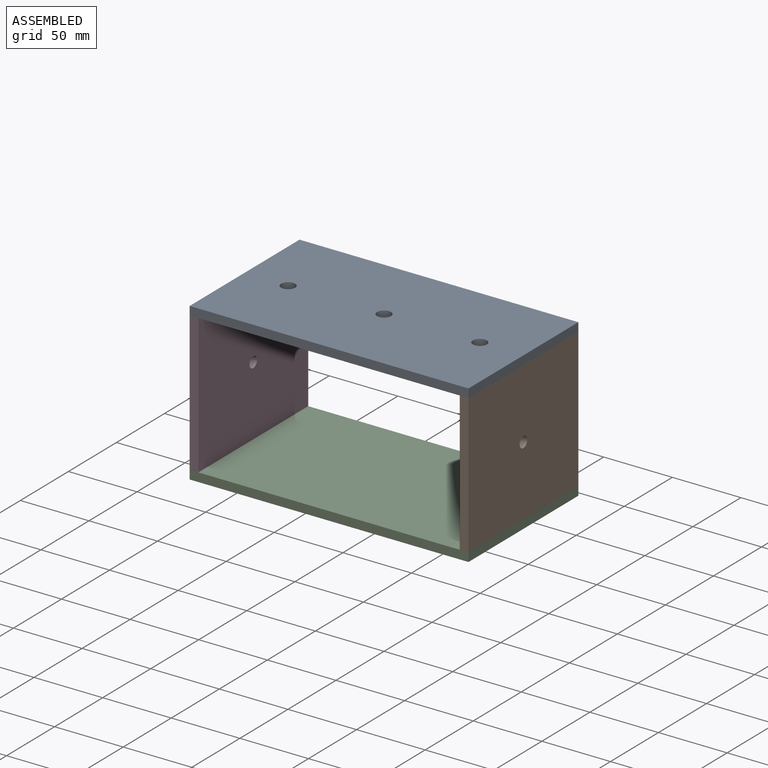
[diagram: assembled view]
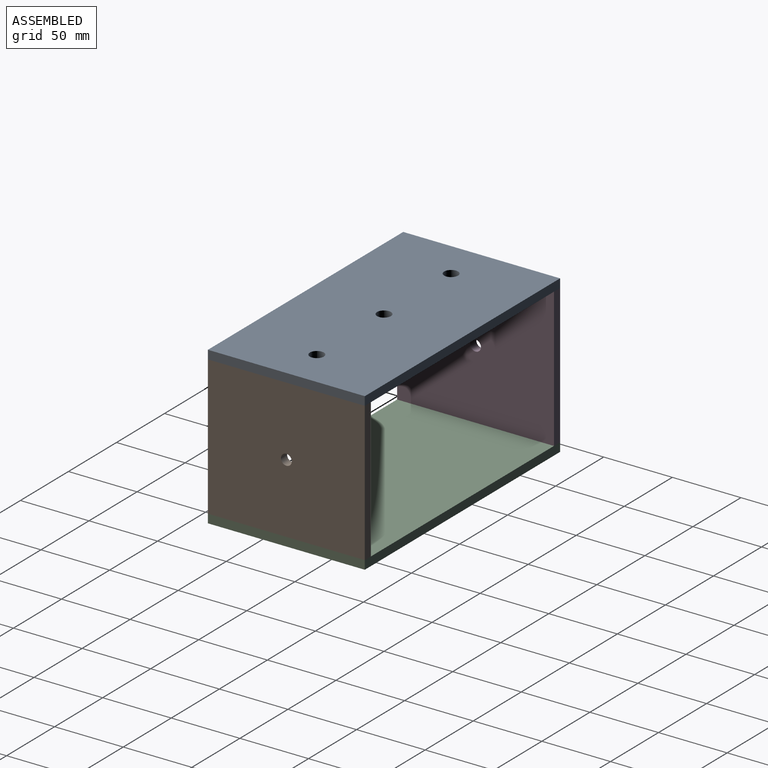
[diagram: assembled view, second angle]
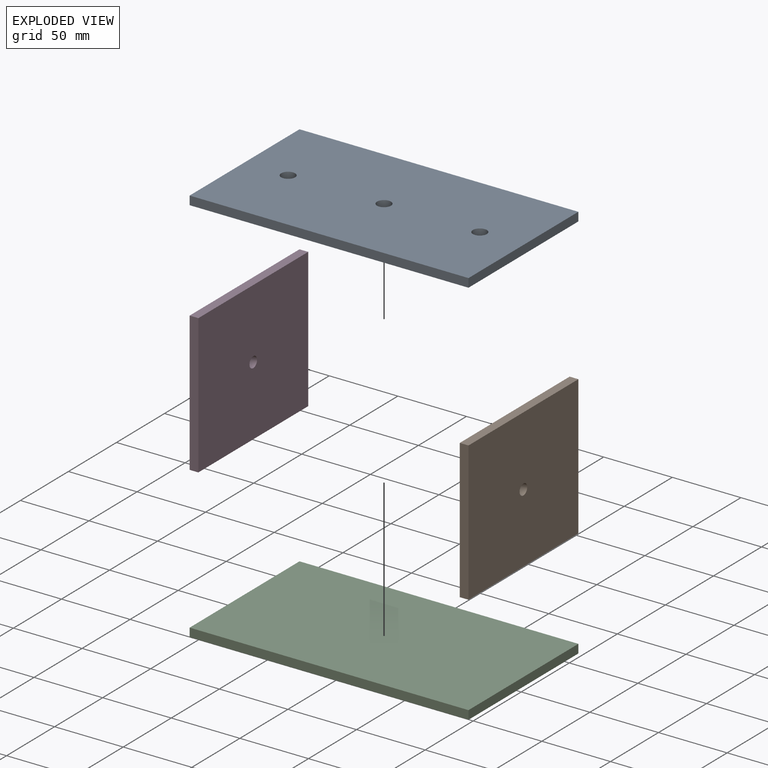
[diagram: exploded view]
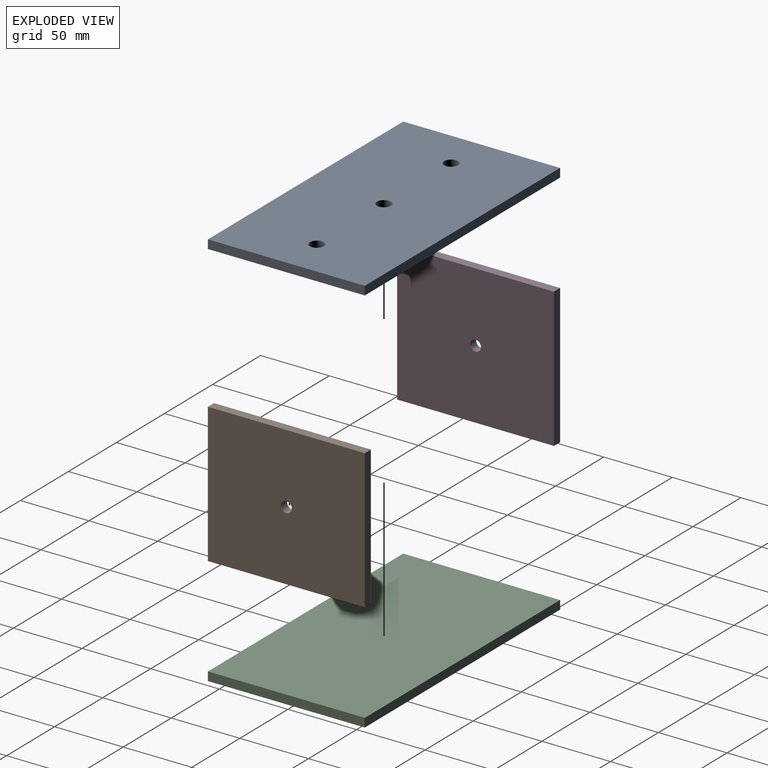
[diagram: exploded view, second angle]
ASSEMBLY  parts=4 mates=3
PART A: 9 faces, bbox 203.2x114.3x6.4 mm
  f0: plane 203.2x6.35mm, normal (0,-1,0), area 1290.3mm2, adj f1,f3,f4,f5
  f1: plane 114.3x6.35mm, normal (-1,0,0), area 725.8mm2, adj f0,f2,f3,f4
  f2: plane 203.2x6.35mm, normal (0,1,0), area 1290.3mm2, adj f1,f3,f4,f5
  f3: plane 203.2x114.3mm, normal (0,0,-1), area 22982.5mm2, adj f0,f1,f2,f5,f6,f7,f8
  f4: plane 203.2x114.3mm, normal (0,0,1), area 22982.5mm2, adj f0,f1,f2,f5,f6,f7,f8
  f5: plane 114.3x6.35mm, normal (1,0,0), area 725.8mm2, adj f0,f2,f3,f4
  f6: cylinder r=5.08mm len=10.16mm, axis (0,0,1), area 202.7mm2, adj f3,f4
  f7: cylinder r=5.08mm len=10.16mm, axis (0,0,1), area 202.7mm2, adj f3,f4
  f8: cylinder r=5.08mm len=10.16mm, axis (0,0,1), area 202.7mm2, adj f3,f4
PART B: 7 faces, bbox 6.4x114.3x101.6 mm
  f0: plane 101.6x6.35mm, normal (0,-1,0), area 645.2mm2, adj f1,f3,f4,f5
  f1: plane 114.3x6.35mm, normal (0,0,-1), area 725.8mm2, adj f0,f2,f3,f4
  f2: plane 101.6x6.35mm, normal (0,1,0), area 645.2mm2, adj f1,f3,f4,f5
  f3: plane 114.3x101.6mm, normal (1,0,0), area 11564.2mm2, adj f0,f1,f2,f5,f6
  f4: plane 114.3x101.6mm, normal (-1,0,0), area 11564.2mm2, adj f0,f1,f2,f5,f6
  f5: plane 114.3x6.35mm, normal (0,0,1), area 725.8mm2, adj f0,f2,f3,f4
  f6: cylinder r=3.94mm len=7.87mm, axis (-1,0,0), area 157.1mm2, adj f3,f4
PART C: 6 faces, bbox 203.2x114.3x6.4 mm
  f0: plane 203.2x114.3mm, normal (0,0,1), area 23225.8mm2, adj f1,f3,f4,f5
  f1: plane 114.3x6.35mm, normal (-1,0,0), area 725.8mm2, adj f0,f2,f4,f5
  f2: plane 203.2x114.3mm, normal (0,0,-1), area 23225.8mm2, adj f1,f3,f4,f5
  f3: plane 114.3x6.35mm, normal (1,0,0), area 725.8mm2, adj f0,f2,f4,f5
  f4: plane 203.2x6.35mm, normal (0,-1,0), area 1290.3mm2, adj f0,f1,f2,f3
  f5: plane 203.2x6.35mm, normal (0,1,0), area 1290.3mm2, adj f0,f1,f2,f3
PART D: 7 faces, bbox 6.4x114.3x101.6 mm
  f0: plane 101.6x6.35mm, normal (0,-1,0), area 645.2mm2, adj f1,f2,f3,f4
  f1: plane 114.3x6.35mm, normal (0,0,1), area 725.8mm2, adj f0,f2,f3,f5
  f2: plane 114.3x101.6mm, normal (1,0,0), area 11564.2mm2, adj f0,f1,f4,f5,f6
  f3: plane 114.3x101.6mm, normal (-1,0,0), area 11564.2mm2, adj f0,f1,f4,f5,f6
  f4: plane 114.3x6.35mm, normal (0,0,-1), area 725.8mm2, adj f0,f2,f3,f5
  f5: plane 101.6x6.35mm, normal (0,1,0), area 645.2mm2, adj f1,f2,f3,f4
  f6: cylinder r=3.94mm len=7.87mm, axis (-1,0,0), area 157.1mm2, adj f2,f3
PLACE A t=(-101.6,0,-6.35)mm
PLACE B t=(-101.6,0,-6.35)mm
PLACE C t=(-101.6,0,-6.35)mm
PLACE D t=(-101.6,0,-6.35)mm
MATE fastened A.f3 <-> B.f5  axis (0,0,1) through (101.6,-57.15,101.6)mm
MATE fastened C.f0 <-> B.f1  axis (0,0,1) through (101.6,-57.15,0)mm
MATE fastened D.f4 <-> C.f0  axis (0,0,1) through (-101.6,-57.15,0)mm
